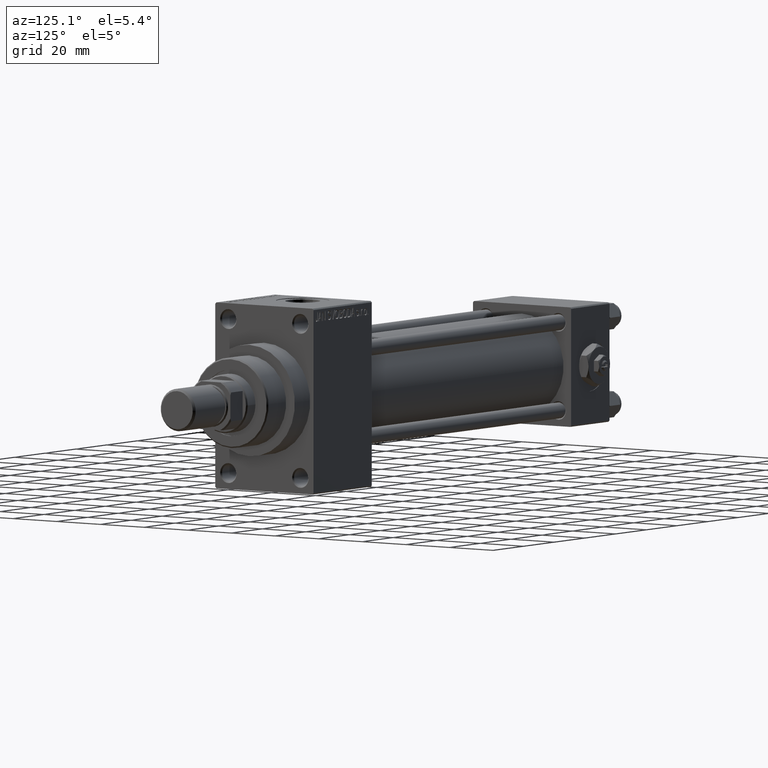
[diagram: clean part render]
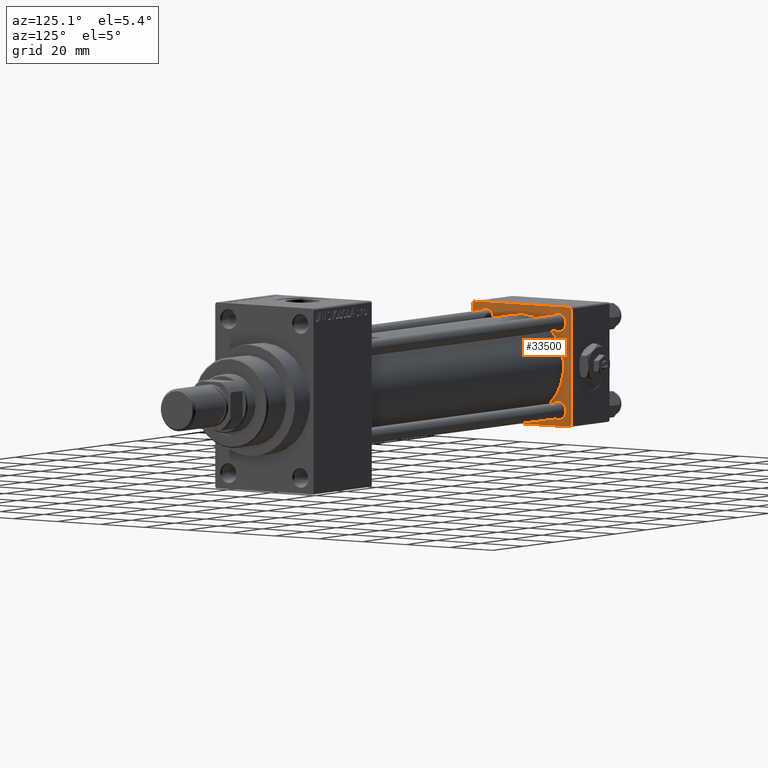
[diagram: same view with one face highlighted and labeled with its STEP entity id]
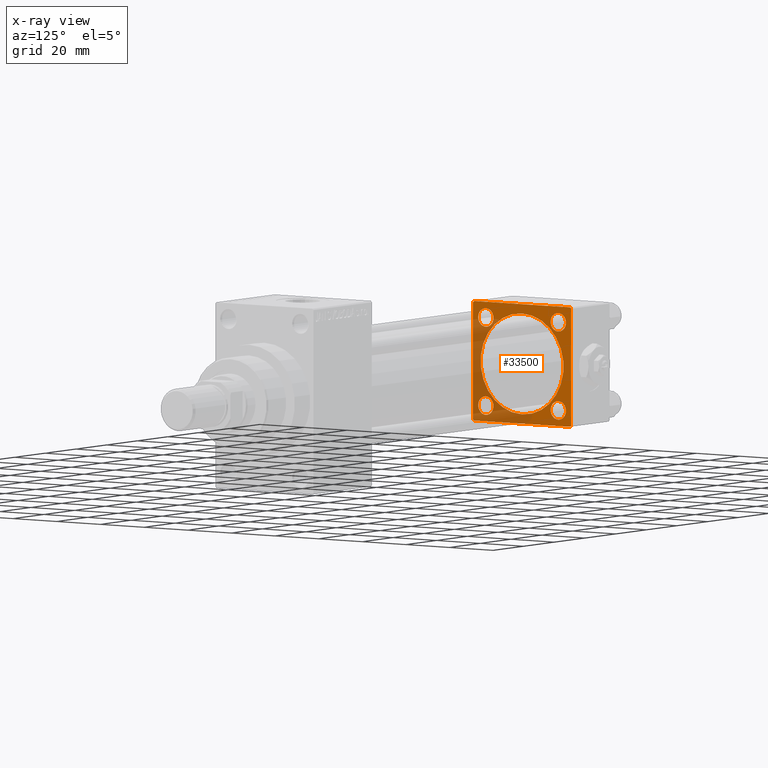
[diagram: x-ray of the same camera — body ghosted, the highlighted face saturated]
A machine part, auxiliary view. The second image highlights one B-rep face of the part: STEP entity #33500.
The next image is the same camera in x-ray: the body ghosted, the highlighted face saturated — about 38% of this face is hidden behind the body in this view.
In plain terms, the highlighted planar face has unit normal (-1, 0, 0).
Its self-contained STEP definition (entity closure, byte-faithful):
#382 = CARTESIAN_POINT ( 'NONE',  ( 25.00000000000000000, 16.59999999999999787, -20.09999999999998010 ) ) ;
#910 = EDGE_CURVE ( 'NONE', #1743, #38248, #3564, .T. ) ;
#1743 = VERTEX_POINT ( 'NONE', #17881 ) ;
#2159 = AXIS2_PLACEMENT_3D ( 'NONE', #5802, #12976, #28357 ) ;
#2282 = CARTESIAN_POINT ( 'NONE',  ( 24.99999999999999289, -2.752562955852396712E-16, -19.00000000000000000 ) ) ;
#2343 = CARTESIAN_POINT ( 'NONE',  ( 25.00000000000000000, 22.50000000000000000, 22.50000000000000355 ) ) ;
#2381 = VERTEX_POINT ( 'NONE', #9593 ) ;
#2850 = ORIENTED_EDGE ( 'NONE', *, *, #24901, .F. ) ;
#3178 = ORIENTED_EDGE ( 'NONE', *, *, #34824, .T. ) ;
#3564 = CIRCLE ( 'NONE', #44066, 3.499999999999975131 ) ;
#3655 = CARTESIAN_POINT ( 'NONE',  ( 25.00000000000000000, 16.59999999999999787, 16.60000000000000497 ) ) ;
#3834 = ORIENTED_EDGE ( 'NONE', *, *, #26649, .T. ) ;
#4011 = CIRCLE ( 'NONE', #32496, 3.499999999999975131 ) ;
#4163 = FACE_BOUND ( 'NONE', #26882, .T. ) ;
#4808 = VERTEX_POINT ( 'NONE', #25204 ) ;
#5572 = CIRCLE ( 'NONE', #33275, 19.00000000000000000 ) ;
#5602 = LINE ( 'NONE', #31639, #27964 ) ;
#5788 = CIRCLE ( 'NONE', #12104, 3.500000000000003109 ) ;
#5802 = CARTESIAN_POINT ( 'NONE',  ( 25.00000000000000000, -16.59999999999999076, 16.60000000000000853 ) ) ;
#5917 = AXIS2_PLACEMENT_3D ( 'NONE', #39744, #31564, #42976 ) ;
#6051 = LINE ( 'NONE', #2343, #10407 ) ;
#6345 = DIRECTION ( 'NONE',  ( -0.000000000000000000, 0.7071067811865426878, 0.7071067811865524577 ) ) ;
#6512 = CARTESIAN_POINT ( 'NONE',  ( 25.00000000000000000, -16.59999999999999076, 20.10000000000001208 ) ) ;
#7622 = AXIS2_PLACEMENT_3D ( 'NONE', #16765, #32630, #17504 ) ;
#7867 = CARTESIAN_POINT ( 'NONE',  ( 25.00000000000000000, -16.59999999999999076, -16.60000000000000853 ) ) ;
#7937 = DIRECTION ( 'NONE',  ( -1.000000000000000000, 0.000000000000000000, -0.000000000000000000 ) ) ;
#8117 = PLANE ( 'NONE',  #7622 ) ;
#8458 = DIRECTION ( 'NONE',  ( -1.000000000000000000, 0.000000000000000000, -0.000000000000000000 ) ) ;
#8849 = CARTESIAN_POINT ( 'NONE',  ( 25.00000000000000000, 16.59999999999999787, -16.60000000000000497 ) ) ;
#9242 = EDGE_CURVE ( 'NONE', #30582, #47583, #45071, .T. ) ;
#9350 = VERTEX_POINT ( 'NONE', #44585 ) ;
#9593 = CARTESIAN_POINT ( 'NONE',  ( 25.00000000000000000, 16.59999999999999787, 20.09999999999998010 ) ) ;
#10218 = ORIENTED_EDGE ( 'NONE', *, *, #18573, .T. ) ;
#10407 = VECTOR ( 'NONE', #28364, 1000.000000000000000 ) ;
#10533 = VERTEX_POINT ( 'NONE', #32034 ) ;
#11563 = DIRECTION ( 'NONE',  ( 0.000000000000000000, -0.7071067811865474617, 0.7071067811865474617 ) ) ;
#11625 = ORIENTED_EDGE ( 'NONE', *, *, #910, .T. ) ;
#11639 = VECTOR ( 'NONE', #11563, 1000.000000000000114 ) ;
#12104 = AXIS2_PLACEMENT_3D ( 'NONE', #21263, #40844, #33150 ) ;
#12198 = EDGE_CURVE ( 'NONE', #39570, #10533, #5572, .T. ) ;
#12560 = DIRECTION ( 'NONE',  ( 0.000000000000000000, 0.000000000000000000, 1.000000000000000000 ) ) ;
#12689 = EDGE_CURVE ( 'NONE', #9350, #4808, #25180, .T. ) ;
#12802 = ORIENTED_EDGE ( 'NONE', *, *, #9242, .T. ) ;
#12976 = DIRECTION ( 'NONE',  ( -1.000000000000000000, 0.000000000000000000, -0.000000000000000000 ) ) ;
#14089 = CARTESIAN_POINT ( 'NONE',  ( 25.00000000000000000, -22.50000000000000000, 22.00000000000000000 ) ) ;
#14637 = VERTEX_POINT ( 'NONE', #39601 ) ;
#14749 = EDGE_LOOP ( 'NONE', ( #2850, #35269 ) ) ;
#15096 = VERTEX_POINT ( 'NONE', #44982 ) ;
#15549 = DIRECTION ( 'NONE',  ( -0.000000000000000000, -0.7071067811865525687, -0.7071067811865425767 ) ) ;
#15578 = VECTOR ( 'NONE', #48805, 1000.000000000000000 ) ;
#16739 = ORIENTED_EDGE ( 'NONE', *, *, #48543, .T. ) ;
#16765 = CARTESIAN_POINT ( 'NONE',  ( 25.00000000000000000, 0.000000000000000000, 0.000000000000000000 ) ) ;
#16987 = VERTEX_POINT ( 'NONE', #44041 ) ;
#17058 = CARTESIAN_POINT ( 'NONE',  ( 25.00000000000000000, 22.50000000000000000, -22.49999999999999645 ) ) ;
#17504 = DIRECTION ( 'NONE',  ( -0.000000000000000000, 0.000000000000000000, 1.000000000000000000 ) ) ;
#17881 = CARTESIAN_POINT ( 'NONE',  ( 25.00000000000000000, 16.59999999999999787, -13.10000000000002807 ) ) ;
#18573 = EDGE_CURVE ( 'NONE', #34780, #20185, #5788, .T. ) ;
#18626 = DIRECTION ( 'NONE',  ( 1.000000000000000000, -0.000000000000000000, 0.000000000000000000 ) ) ;
#18752 = EDGE_CURVE ( 'NONE', #27285, #23912, #5602, .T. ) ;
#19026 = CARTESIAN_POINT ( 'NONE',  ( 25.00000000000000000, -16.59999999999999076, -20.10000000000000853 ) ) ;
#19260 = FACE_BOUND ( 'NONE', #14749, .T. ) ;
#19396 = EDGE_CURVE ( 'NONE', #14637, #2381, #23221, .T. ) ;
#19494 = LINE ( 'NONE', #38350, #11639 ) ;
#19887 = DIRECTION ( 'NONE',  ( -1.000000000000000000, 0.000000000000000000, -0.000000000000000000 ) ) ;
#20054 = CARTESIAN_POINT ( 'NONE',  ( 25.00000000000000000, -21.99999999999997158, -22.50000000000000711 ) ) ;
#20184 = ORIENTED_EDGE ( 'NONE', *, *, #23923, .T. ) ;
#20185 = VERTEX_POINT ( 'NONE', #45594 ) ;
#20773 = CARTESIAN_POINT ( 'NONE',  ( 25.00000000000000000, -16.59999999999999076, 16.60000000000000853 ) ) ;
#21068 = DIRECTION ( 'NONE',  ( 0.000000000000000000, -1.000000000000000000, -7.709882115452476934E-17 ) ) ;
#21263 = CARTESIAN_POINT ( 'NONE',  ( 25.00000000000000000, -16.59999999999999076, -16.60000000000000853 ) ) ;
#21277 = DIRECTION ( 'NONE',  ( 0.000000000000000000, -1.000000000000000000, -2.312964634635742957E-16 ) ) ;
#21296 = ORIENTED_EDGE ( 'NONE', *, *, #35636, .T. ) ;
#21319 = LINE ( 'NONE', #32230, #26461 ) ;
#22460 = EDGE_LOOP ( 'NONE', ( #20184, #11625 ) ) ;
#22988 = DIRECTION ( 'NONE',  ( 0.000000000000000000, 0.000000000000000000, 1.000000000000000000 ) ) ;
#23221 = CIRCLE ( 'NONE', #27184, 3.499999999999975131 ) ;
#23559 = ORIENTED_EDGE ( 'NONE', *, *, #35401, .T. ) ;
#23774 = ORIENTED_EDGE ( 'NONE', *, *, #12689, .T. ) ;
#23912 = VERTEX_POINT ( 'NONE', #38751 ) ;
#23923 = EDGE_CURVE ( 'NONE', #38248, #1743, #28791, .T. ) ;
#24455 = ORIENTED_EDGE ( 'NONE', *, *, #48833, .F. ) ;
#24755 = LINE ( 'NONE', #17058, #35680 ) ;
#24870 = EDGE_LOOP ( 'NONE', ( #10218, #16739 ) ) ;
#24887 = EDGE_LOOP ( 'NONE', ( #21296, #12802 ) ) ;
#24901 = EDGE_CURVE ( 'NONE', #10533, #39570, #35990, .T. ) ;
#25180 = LINE ( 'NONE', #33103, #34088 ) ;
#25204 = CARTESIAN_POINT ( 'NONE',  ( 25.00000000000000000, 22.50000000000000000, -21.99999999999996803 ) ) ;
#25289 = AXIS2_PLACEMENT_3D ( 'NONE', #20773, #35904, #39145 ) ;
#25375 = EDGE_CURVE ( 'NONE', #15096, #30578, #21319, .T. ) ;
#25424 = AXIS2_PLACEMENT_3D ( 'NONE', #7867, #26951, #22988 ) ;
#25841 = CARTESIAN_POINT ( 'NONE',  ( 25.00000000000000000, -16.59999999999999076, 13.10000000000000142 ) ) ;
#25957 = DIRECTION ( 'NONE',  ( -1.000000000000000000, 0.000000000000000000, -0.000000000000000000 ) ) ;
#26432 = ORIENTED_EDGE ( 'NONE', *, *, #47153, .T. ) ;
#26461 = VECTOR ( 'NONE', #21068, 1000.000000000000000 ) ;
#26560 = CARTESIAN_POINT ( 'NONE',  ( 24.99999999999999289, -2.602085213965210642E-15, 0.000000000000000000 ) ) ;
#26649 = EDGE_CURVE ( 'NONE', #30578, #27285, #34390, .T. ) ;
#26695 = CIRCLE ( 'NONE', #2159, 3.500000000000006661 ) ;
#26882 = EDGE_LOOP ( 'NONE', ( #44528, #26432 ) ) ;
#26951 = DIRECTION ( 'NONE',  ( -1.000000000000000000, 0.000000000000000000, -0.000000000000000000 ) ) ;
#27184 = AXIS2_PLACEMENT_3D ( 'NONE', #30535, #8458, #41946 ) ;
#27198 = CARTESIAN_POINT ( 'NONE',  ( 25.00000000000000000, -22.50000000000000000, 22.00000000000000000 ) ) ;
#27285 = VERTEX_POINT ( 'NONE', #14089 ) ;
#27964 = VECTOR ( 'NONE', #42313, 1000.000000000000000 ) ;
#28125 = ORIENTED_EDGE ( 'NONE', *, *, #47819, .F. ) ;
#28357 = DIRECTION ( 'NONE',  ( 0.000000000000000000, 0.000000000000000000, 1.000000000000000000 ) ) ;
#28364 = DIRECTION ( 'NONE',  ( 0.000000000000000000, 0.000000000000000000, -1.000000000000000000 ) ) ;
#28791 = CIRCLE ( 'NONE', #39937, 3.499999999999975131 ) ;
#29932 = DIRECTION ( 'NONE',  ( 0.000000000000000000, 0.000000000000000000, 1.000000000000000000 ) ) ;
#30532 = DIRECTION ( 'NONE',  ( 0.000000000000000000, 0.000000000000000000, 1.000000000000000000 ) ) ;
#30535 = CARTESIAN_POINT ( 'NONE',  ( 25.00000000000000000, 16.59999999999999787, 16.60000000000000497 ) ) ;
#30578 = VERTEX_POINT ( 'NONE', #32542 ) ;
#30582 = VERTEX_POINT ( 'NONE', #6512 ) ;
#31412 = FACE_BOUND ( 'NONE', #22460, .T. ) ;
#31564 = DIRECTION ( 'NONE',  ( 1.000000000000000000, -0.000000000000000000, 0.000000000000000000 ) ) ;
#31639 = CARTESIAN_POINT ( 'NONE',  ( 25.00000000000000000, -22.50000000000000000, 22.50000000000000000 ) ) ;
#32034 = CARTESIAN_POINT ( 'NONE',  ( 24.99999999999999289, -2.602085213965210642E-15, 19.00000000000000000 ) ) ;
#32230 = CARTESIAN_POINT ( 'NONE',  ( 25.00000000000000000, 22.50000000000000000, 22.50000000000000355 ) ) ;
#32496 = AXIS2_PLACEMENT_3D ( 'NONE', #3655, #25957, #29932 ) ;
#32542 = CARTESIAN_POINT ( 'NONE',  ( 25.00000000000000000, -21.99999999999997868, 22.50000000000000000 ) ) ;
#32630 = DIRECTION ( 'NONE',  ( -1.000000000000000000, 0.000000000000000000, -0.000000000000000000 ) ) ;
#32843 = VECTOR ( 'NONE', #15549, 999.9999999999998863 ) ;
#33103 = CARTESIAN_POINT ( 'NONE',  ( 25.00000000000000000, 22.50000000000000000, -21.99999999999998224 ) ) ;
#33150 = DIRECTION ( 'NONE',  ( 0.000000000000000000, 0.000000000000000000, 1.000000000000000000 ) ) ;
#33275 = AXIS2_PLACEMENT_3D ( 'NONE', #26560, #18626, #30532 ) ;
#33500 = ADVANCED_FACE ( 'NONE', ( #42823, #31412, #46544, #4163, #19260, #42089 ), #8117, .F. ) ;
#34088 = VECTOR ( 'NONE', #6345, 1000.000000000000000 ) ;
#34160 = LINE ( 'NONE', #42768, #15578 ) ;
#34166 = ORIENTED_EDGE ( 'NONE', *, *, #18752, .T. ) ;
#34390 = LINE ( 'NONE', #27198, #32843 ) ;
#34780 = VERTEX_POINT ( 'NONE', #19026 ) ;
#34824 = EDGE_CURVE ( 'NONE', #23912, #43839, #34160, .T. ) ;
#35269 = ORIENTED_EDGE ( 'NONE', *, *, #12198, .F. ) ;
#35401 = EDGE_CURVE ( 'NONE', #16987, #15096, #19494, .T. ) ;
#35636 = EDGE_CURVE ( 'NONE', #47583, #30582, #26695, .T. ) ;
#35680 = VECTOR ( 'NONE', #21277, 1000.000000000000000 ) ;
#35904 = DIRECTION ( 'NONE',  ( -1.000000000000000000, 0.000000000000000000, -0.000000000000000000 ) ) ;
#35990 = CIRCLE ( 'NONE', #5917, 19.00000000000000000 ) ;
#38248 = VERTEX_POINT ( 'NONE', #382 ) ;
#38350 = CARTESIAN_POINT ( 'NONE',  ( 25.00000000000000000, 21.99999999999999289, 22.50000000000000355 ) ) ;
#38651 = ORIENTED_EDGE ( 'NONE', *, *, #25375, .T. ) ;
#38751 = CARTESIAN_POINT ( 'NONE',  ( 25.00000000000000000, -22.50000000000000000, -21.99999999999997158 ) ) ;
#39145 = DIRECTION ( 'NONE',  ( 0.000000000000000000, 0.000000000000000000, 1.000000000000000000 ) ) ;
#39570 = VERTEX_POINT ( 'NONE', #2282 ) ;
#39601 = CARTESIAN_POINT ( 'NONE',  ( 25.00000000000000000, 16.59999999999999787, 13.10000000000002807 ) ) ;
#39744 = CARTESIAN_POINT ( 'NONE',  ( 24.99999999999999289, -2.602085213965210642E-15, 0.000000000000000000 ) ) ;
#39937 = AXIS2_PLACEMENT_3D ( 'NONE', #46439, #19887, #42966 ) ;
#40844 = DIRECTION ( 'NONE',  ( -1.000000000000000000, 0.000000000000000000, -0.000000000000000000 ) ) ;
#41946 = DIRECTION ( 'NONE',  ( 0.000000000000000000, 0.000000000000000000, 1.000000000000000000 ) ) ;
#42089 = FACE_OUTER_BOUND ( 'NONE', #43289, .T. ) ;
#42313 = DIRECTION ( 'NONE',  ( 0.000000000000000000, 0.000000000000000000, -1.000000000000000000 ) ) ;
#42768 = CARTESIAN_POINT ( 'NONE',  ( 25.00000000000000000, -21.99999999999998579, -22.50000000000000711 ) ) ;
#42823 = FACE_BOUND ( 'NONE', #24870, .T. ) ;
#42966 = DIRECTION ( 'NONE',  ( 0.000000000000000000, 0.000000000000000000, 1.000000000000000000 ) ) ;
#42976 = DIRECTION ( 'NONE',  ( 0.000000000000000000, 0.000000000000000000, 1.000000000000000000 ) ) ;
#43289 = EDGE_LOOP ( 'NONE', ( #28125, #23774, #24455, #23559, #38651, #3834, #34166, #3178 ) ) ;
#43839 = VERTEX_POINT ( 'NONE', #20054 ) ;
#44041 = CARTESIAN_POINT ( 'NONE',  ( 25.00000000000000000, 22.50000000000000000, 21.99999999999999645 ) ) ;
#44066 = AXIS2_PLACEMENT_3D ( 'NONE', #8849, #7937, #12560 ) ;
#44528 = ORIENTED_EDGE ( 'NONE', *, *, #19396, .T. ) ;
#44585 = CARTESIAN_POINT ( 'NONE',  ( 25.00000000000000000, 21.99999999999999289, -22.49999999999999645 ) ) ;
#44982 = CARTESIAN_POINT ( 'NONE',  ( 25.00000000000000000, 21.99999999999999289, 22.50000000000000355 ) ) ;
#45071 = CIRCLE ( 'NONE', #25289, 3.500000000000006661 ) ;
#45209 = CIRCLE ( 'NONE', #25424, 3.500000000000003109 ) ;
#45594 = CARTESIAN_POINT ( 'NONE',  ( 25.00000000000000000, -16.59999999999999076, -13.10000000000000320 ) ) ;
#46439 = CARTESIAN_POINT ( 'NONE',  ( 25.00000000000000000, 16.59999999999999787, -16.60000000000000497 ) ) ;
#46544 = FACE_BOUND ( 'NONE', #24887, .T. ) ;
#47153 = EDGE_CURVE ( 'NONE', #2381, #14637, #4011, .T. ) ;
#47583 = VERTEX_POINT ( 'NONE', #25841 ) ;
#47819 = EDGE_CURVE ( 'NONE', #9350, #43839, #24755, .T. ) ;
#48543 = EDGE_CURVE ( 'NONE', #20185, #34780, #45209, .T. ) ;
#48805 = DIRECTION ( 'NONE',  ( 0.000000000000000000, 0.7071067811865426878, -0.7071067811865524577 ) ) ;
#48833 = EDGE_CURVE ( 'NONE', #16987, #4808, #6051, .T. ) ;